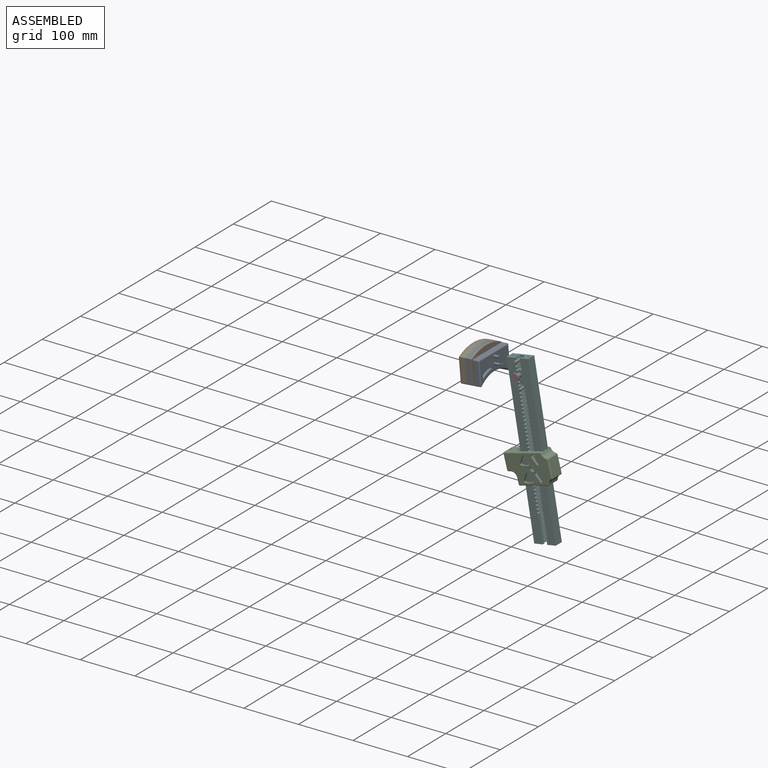
[diagram: assembled view]
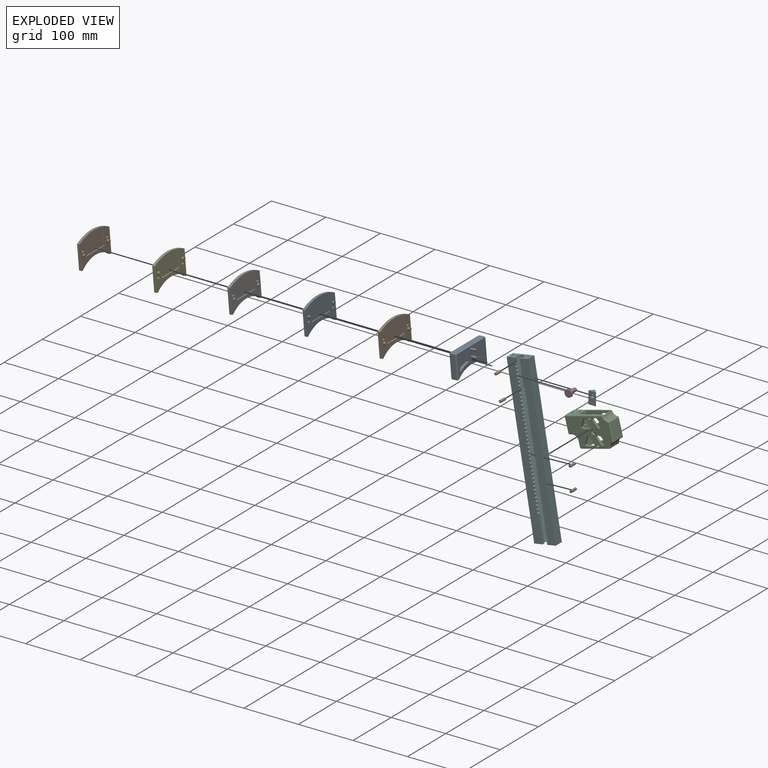
[diagram: exploded view]
GUIDED TOUR — MATED ASSEMBLY (Onshape document 585864c1596bf11182e5760e, AutoMate assembly 585864c1596bf11182e5760e_6d702999cdd7832cfa0c3717_f75b64ee01786ceb7d388334_default)

This assembly has 14 components, labeled P0..P13 below (a component is one placed occurrence of a part; the same part can appear more than once), held together by 15 mates. A mate is a constraint between two components; its type names the relative motion it leaves free:
  CYLINDRICAL — leaves both rotation about and translation along the listed axis free,
  PARALLEL — keeps the two listed directions parallel,
  PLANAR — leaves sliding in the plane through the listed point (normal = the listed direction) and rotation about that normal free.
Axis/direction vectors are unit vectors and 'through' points are millimeter coordinates, both in the assembly's world frame.

MATES
  1. CYLINDRICAL "Cylindrical 14": P5 <-> P2, axis (0.003, -1.000, 0.002) through (-80.91, 120.41, -282.94) mm
  2. CYLINDRICAL "Cylindrical 4": P12 <-> P6, axis (0.996, 0.003, 0.087) through (-178.58, 97.48, -151.02) mm
  3. PARALLEL "Parallel 1": P13 <-> P5, direction (0.003, -1.000, 0.002) through (-101.75, 124.40, -161.98) mm
  4. CYLINDRICAL "Cylindrical 2": P0 <-> P1, axis (-0.996, -0.003, -0.087) through (-169.02, 97.50, -150.18) mm
  5. CYLINDRICAL "Cylindrical 7": P1 <-> P8, axis (0.996, 0.003, 0.087) through (-163.61, 97.49, -156.94) mm
  6. CYLINDRICAL "Cylindrical 12": P4 <-> P5, axis (-0.003, 1.000, -0.002) through (-106.25, 123.05, -136.31) mm
  7. CYLINDRICAL "Cylindrical 9": P13 <-> P11, axis (0.003, -1.000, 0.002) through (-101.77, 130.41, -158.02) mm
  8. PLANAR "Planar 6": P1 <-> P8, direction (0.996, 0.003, 0.087) through (-164.06, 129.26, -152.83) mm
  9. PLANAR "Planar 8": P13 <-> P11, direction (0.003, -1.000, 0.002) through (-101.77, 130.41, -158.02) mm
  10. PLANAR "Planar 2": P0 <-> P1, direction (0.996, 0.003, 0.087) through (-168.84, 129.24, -153.25) mm
  11. PLANAR "Planar 4": P12 <-> P6, direction (0.996, 0.003, 0.087) through (-178.58, 97.48, -151.02) mm
  12. PLANAR "Planar 3": P0 <-> P6, direction (-0.996, -0.003, -0.087) through (-173.75, 129.23, -152.22) mm
  13. CYLINDRICAL "Cylindrical 3": P6 <-> P0, axis (0.996, 0.003, 0.087) through (-173.17, 97.47, -157.77) mm
  14. CYLINDRICAL "Cylindrical 5": P9 <-> P12, axis (-0.996, -0.003, -0.087) through (-182.73, 97.44, -158.61) mm
  15. PLANAR "Planar 5": P12 <-> P9, direction (-0.996, -0.003, -0.087) through (-183.31, 129.21, -153.06) mm

ASSEMBLY ORDER
  1. P5 — the base component [order heuristic]
  2. P2 — core [order heuristic]
  3. P3 — core [order heuristic]
  4. P7 — core [order heuristic]
  5. P11 [order verified]
  6. P13 [order verified]
  7. P8 [order verified]
  8. P1 [order verified]
  9. P0 [order verified]
  10. P6 [order verified]
  11. P12 [order verified]
  12. P9 [order verified]
  13. P4 [order verified]
  14. P10 [order verified]
(P0, P1, P6, P9, P12, P13 verified with a relaxed clearance tolerance: the source model stores slight part interference there.)
Order-tag legend:
  [order verified] — this step's position reverses a verified removal order: the component was checked to insert without passing through the ones already placed.
  [order heuristic] — the first 4 components form the assembly's core: parts whose collision-free extraction could not be verified, listed in mate-graph order.

Of the 14 components, 9 carry the full construction recipe — the FeatureScript program that regenerates the part's solid from scratch; the rest are supplied as boundary geometry only.
Because this assembly has more than 12 components, the tour below covers the 12 most significant ones individually (every recipe-attached component first, then the largest by part volume), in assembly order; the remaining 2 are summarized together in a grouped section at the end.
Each toured component is shown spotlighted twice — in the assembled view, then in the exploded view, where a leader line traces a displaced component back to its assembled socket (saturated green if recipe-attached, orange if geometry-only; every other component desaturated gray) — followed by its recipe or geometry summary and the mates that hold it.
NOTE — document 2 of 2 of this assembly tour. The two overview renders and the header above are repeated from document 1; the component sections below continue where the previous document stopped.
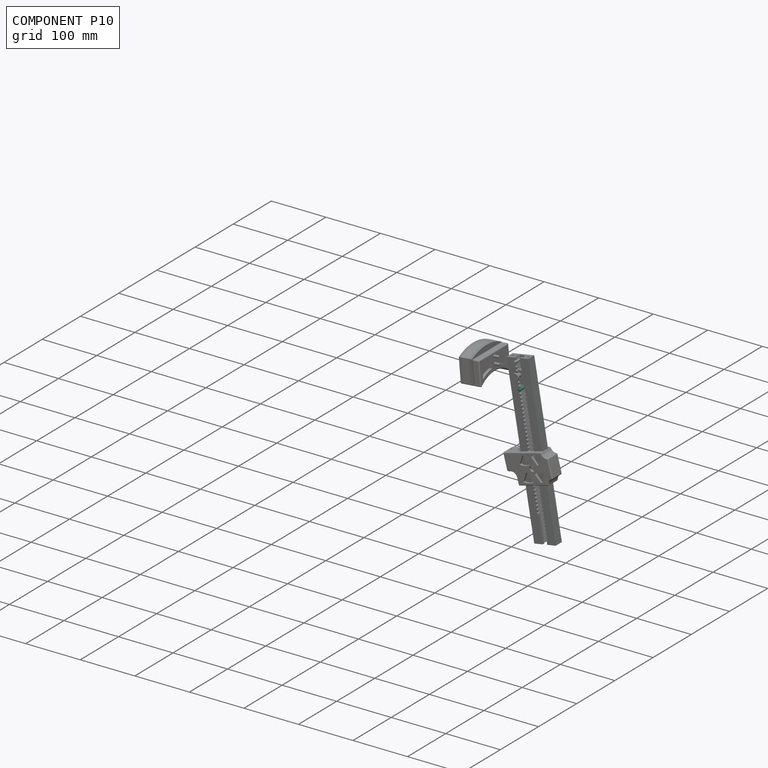
[diagram: component P10 — assembled]
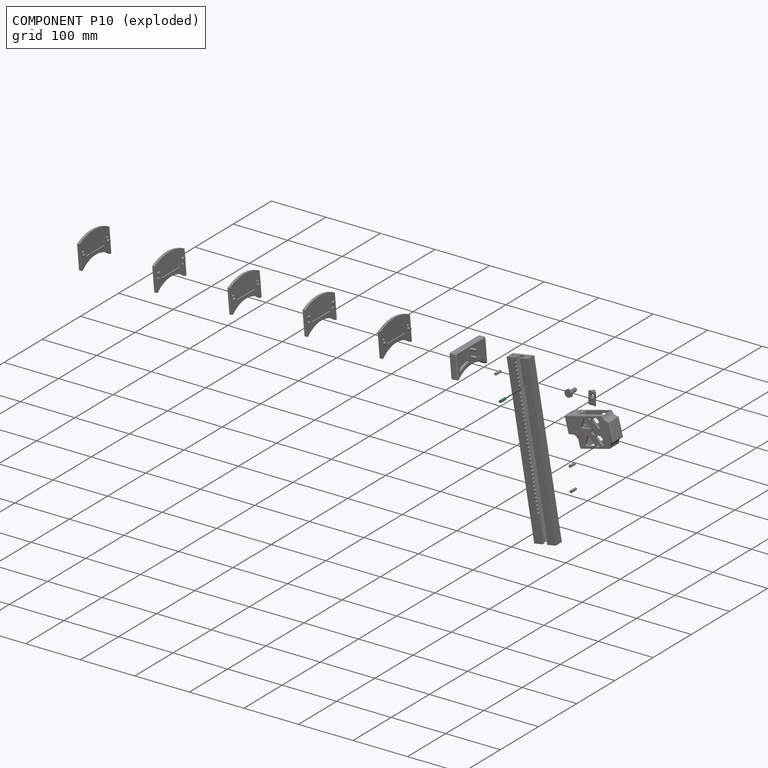
[diagram: component P10 — exploded]
COMPONENT P10 — same part as P3 (CADFS 00394855); its construction recipe is shown at P3.
Held by: no mates (free).
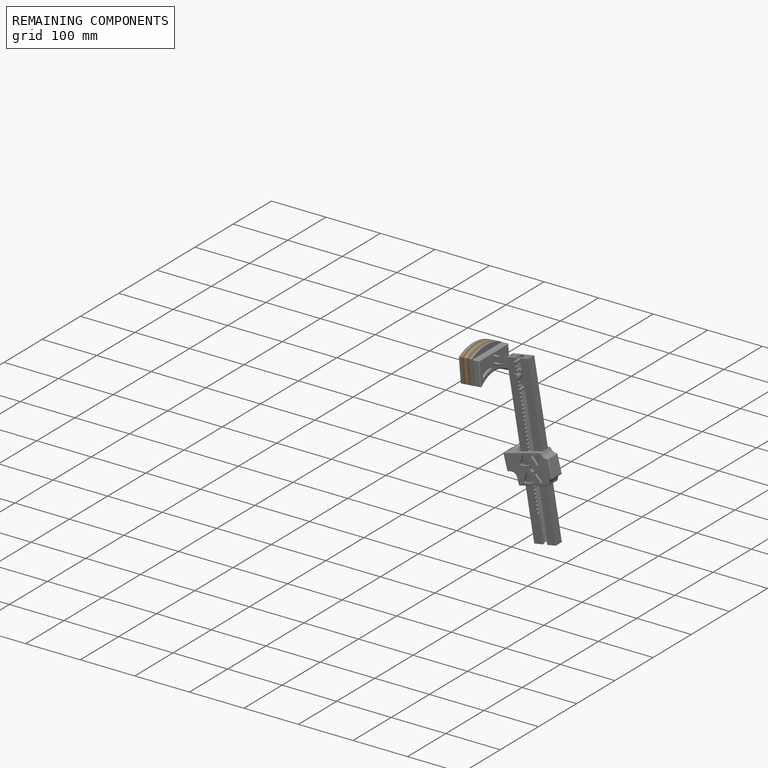
[diagram: remaining components — assembled]
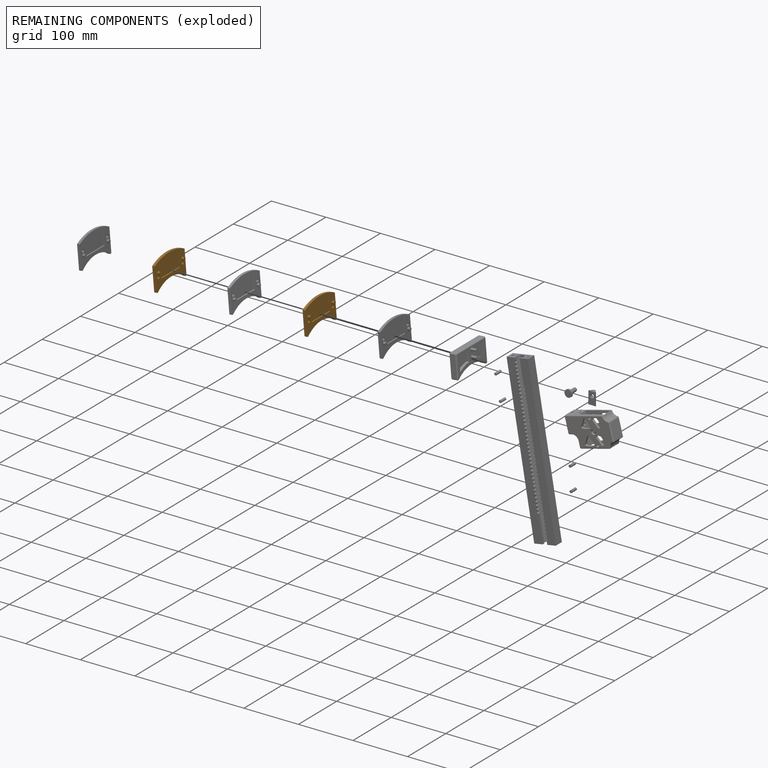
[diagram: remaining components — exploded]
REMAINING COMPONENTS (grouped) — the 2 components below fall outside the per-component tour by the significance rule stated above; both spotlight views highlight the whole group.
  P0: bounding box 78.0 x 52.7 x 8.8 mm, volume 12808 mm^3. Held by: CYLINDRICAL mate "Cylindrical 2" to P1; PLANAR mate "Planar 2" to P1; PLANAR mate "Planar 3" to P6; CYLINDRICAL mate "Cylindrical 3" to P6.
  P12: bounding box 78.0 x 52.7 x 8.8 mm, volume 12808 mm^3. Held by: CYLINDRICAL mate "Cylindrical 4" to P6; PLANAR mate "Planar 4" to P6; CYLINDRICAL mate "Cylindrical 5" to P9; PLANAR mate "Planar 5" to P9.
PROVENANCE & LICENSES
Assembly (occurrences, transforms, mates, per-part STEP geometry): AutoMate dataset, Zenodo record 7776208, CC0.
Construction recipes: CADFS (HuggingFace VladPyatov/CADFS, CC-BY-4.0, layered over the ABC dataset), FeatureScript reconstruction programs keyed by ABC model id.
Join: ABC meta listings map ABC model id -> Onshape documentId; within a shared document, parts are matched by geometric signature (bounding-box dims + volume at 0.1% relative tolerance, exact B-rep face/solid counts).
Verification: 9 of this assembly's 14 components carry a recipe attachment, and every attachment is mesh-verified: the CADFS STEP and the AutoMate member STEP were compared as meshes in their shared local frame (symmetric sampled-point-to-mesh distance); worst across the 9 attachments: below the mesh-comparison resolution (tessellation chordal tolerance ~0.153 mm) on a 102 mm part.
Renders: orthographic iso camera (az 35 / el 25); the floor grid conveys scale (grid pitch printed in each image; no ruler). In the exploded view each component is displaced by its stored offset vector: the offsets alone carry the explosion direction (mate normal/axis signs are not orientation cues and do not encode it), and separation distances are assigned per mate-chain, not proportionally to assembly-order depth.
